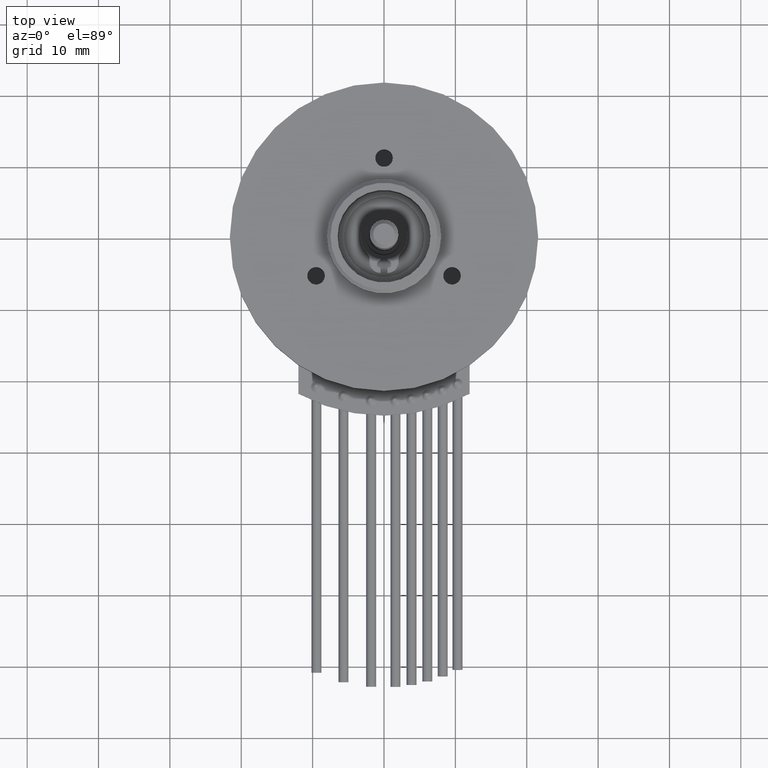
[diagram: clean part render]
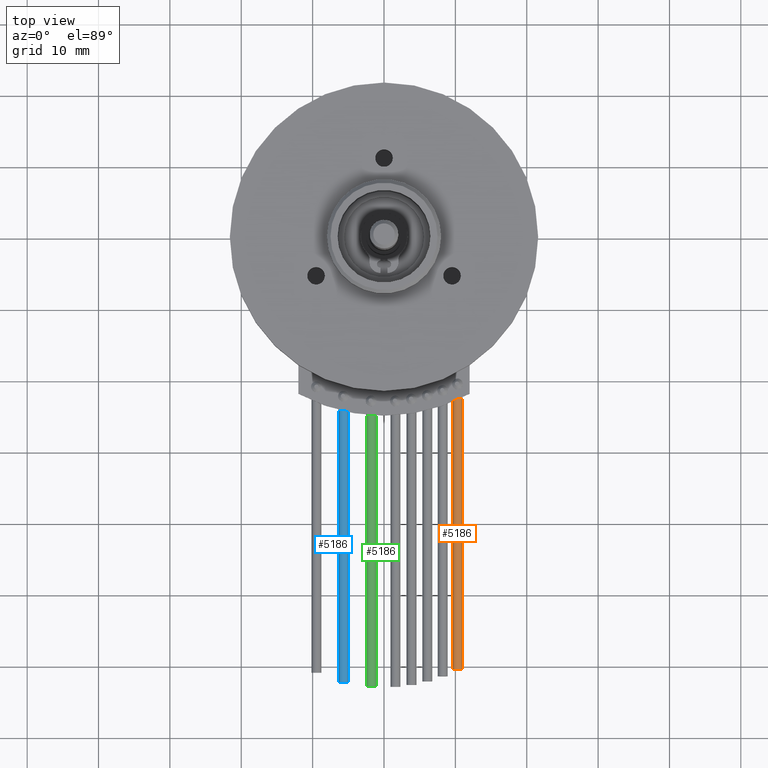
[diagram: same view with three faces highlighted in distinct colors, each labeled with its STEP entity id]
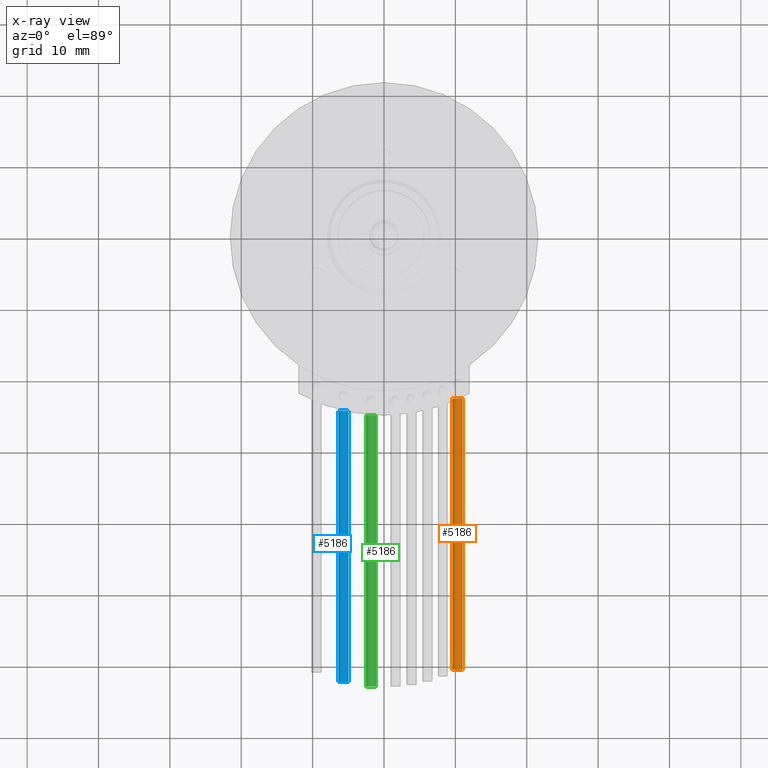
[diagram: x-ray of the same camera — body ghosted, the three highlighted faces saturated]
A machine part, top view with three faces highlighted in distinct colors.
The next image is the same camera in x-ray (body ghosted, the three faces saturated) — at least one of them is partly hidden behind the body in this view.
Their STEP definitions:

[orange] entity #5186 — the highlighted cylindrical surface (bore or boss wall) has radius 0.7 mm, axis along (0, 1, 0).
#5155=CARTESIAN_POINT('',(0.700000000000000,-2.000000000000002,8.572528E-017));
#5156=VERTEX_POINT('',#5155);
#5157=CARTESIAN_POINT('',(3.154314E-016,-2.000000000000002,0.0));
#5158=DIRECTION('',(0.0,-1.0,0.0));
#5159=DIRECTION('',(-1.0,0.0,0.0));
#5160=AXIS2_PLACEMENT_3D('',#5157,#5158,#5159);
#5161=CIRCLE('',#5160,0.700000000000000);
#5162=EDGE_CURVE('',#5156,#5156,#5161,.T.);
#5167=CARTESIAN_POINT('',(2.487169E-015,-40.0,0.0));
#5168=DIRECTION('',(-5.715100E-017,1.0,0.0));
#5169=DIRECTION('',(-1.0,0.0,0.0));
#5170=AXIS2_PLACEMENT_3D('',#5167,#5168,#5169);
#5171=CYLINDRICAL_SURFACE('',#5170,0.700000000000000);
#5172=ORIENTED_EDGE('',*,*,#5162,.T.);
#5173=EDGE_LOOP('',(#5172));
#5174=FACE_OUTER_BOUND('',#5173,.T.);
#5175=CARTESIAN_POINT('',(0.700000000000002,-40.0,8.572528E-017));
#5176=VERTEX_POINT('',#5175);
#5177=CARTESIAN_POINT('',(2.487169E-015,-40.0,0.0));
#5178=DIRECTION('',(0.0,1.0,0.0));
#5179=DIRECTION('',(-1.0,0.0,0.0));
#5180=AXIS2_PLACEMENT_3D('',#5177,#5178,#5179);
#5181=CIRCLE('',#5180,0.700000000000000);
#5182=EDGE_CURVE('',#5176,#5176,#5181,.T.);
#5183=ORIENTED_EDGE('',*,*,#5182,.T.);
#5184=EDGE_LOOP('',(#5183));
#5185=FACE_BOUND('',#5184,.T.);
#5186=ADVANCED_FACE('',(#5174,#5185),#5171,.T.);

[blue] entity #5186 — the highlighted cylindrical surface (bore or boss wall) has radius 0.7 mm, axis along (0, 1, 0).
#5155=CARTESIAN_POINT('',(0.700000000000000,-2.000000000000002,8.572528E-017));
#5156=VERTEX_POINT('',#5155);
#5157=CARTESIAN_POINT('',(3.154314E-016,-2.000000000000002,0.0));
#5158=DIRECTION('',(0.0,-1.0,0.0));
#5159=DIRECTION('',(-1.0,0.0,0.0));
#5160=AXIS2_PLACEMENT_3D('',#5157,#5158,#5159);
#5161=CIRCLE('',#5160,0.700000000000000);
#5162=EDGE_CURVE('',#5156,#5156,#5161,.T.);
#5167=CARTESIAN_POINT('',(2.487169E-015,-40.0,0.0));
#5168=DIRECTION('',(-5.715100E-017,1.0,0.0));
#5169=DIRECTION('',(-1.0,0.0,0.0));
#5170=AXIS2_PLACEMENT_3D('',#5167,#5168,#5169);
#5171=CYLINDRICAL_SURFACE('',#5170,0.700000000000000);
#5172=ORIENTED_EDGE('',*,*,#5162,.T.);
#5173=EDGE_LOOP('',(#5172));
#5174=FACE_OUTER_BOUND('',#5173,.T.);
#5175=CARTESIAN_POINT('',(0.700000000000002,-40.0,8.572528E-017));
#5176=VERTEX_POINT('',#5175);
#5177=CARTESIAN_POINT('',(2.487169E-015,-40.0,0.0));
#5178=DIRECTION('',(0.0,1.0,0.0));
#5179=DIRECTION('',(-1.0,0.0,0.0));
#5180=AXIS2_PLACEMENT_3D('',#5177,#5178,#5179);
#5181=CIRCLE('',#5180,0.700000000000000);
#5182=EDGE_CURVE('',#5176,#5176,#5181,.T.);
#5183=ORIENTED_EDGE('',*,*,#5182,.T.);
#5184=EDGE_LOOP('',(#5183));
#5185=FACE_BOUND('',#5184,.T.);
#5186=ADVANCED_FACE('',(#5174,#5185),#5171,.T.);

[green] entity #5186 — the highlighted cylindrical surface (bore or boss wall) has radius 0.7 mm, axis along (0, 1, 0).
#5155=CARTESIAN_POINT('',(0.700000000000000,-2.000000000000002,8.572528E-017));
#5156=VERTEX_POINT('',#5155);
#5157=CARTESIAN_POINT('',(3.154314E-016,-2.000000000000002,0.0));
#5158=DIRECTION('',(0.0,-1.0,0.0));
#5159=DIRECTION('',(-1.0,0.0,0.0));
#5160=AXIS2_PLACEMENT_3D('',#5157,#5158,#5159);
#5161=CIRCLE('',#5160,0.700000000000000);
#5162=EDGE_CURVE('',#5156,#5156,#5161,.T.);
#5167=CARTESIAN_POINT('',(2.487169E-015,-40.0,0.0));
#5168=DIRECTION('',(-5.715100E-017,1.0,0.0));
#5169=DIRECTION('',(-1.0,0.0,0.0));
#5170=AXIS2_PLACEMENT_3D('',#5167,#5168,#5169);
#5171=CYLINDRICAL_SURFACE('',#5170,0.700000000000000);
#5172=ORIENTED_EDGE('',*,*,#5162,.T.);
#5173=EDGE_LOOP('',(#5172));
#5174=FACE_OUTER_BOUND('',#5173,.T.);
#5175=CARTESIAN_POINT('',(0.700000000000002,-40.0,8.572528E-017));
#5176=VERTEX_POINT('',#5175);
#5177=CARTESIAN_POINT('',(2.487169E-015,-40.0,0.0));
#5178=DIRECTION('',(0.0,1.0,0.0));
#5179=DIRECTION('',(-1.0,0.0,0.0));
#5180=AXIS2_PLACEMENT_3D('',#5177,#5178,#5179);
#5181=CIRCLE('',#5180,0.700000000000000);
#5182=EDGE_CURVE('',#5176,#5176,#5181,.T.);
#5183=ORIENTED_EDGE('',*,*,#5182,.T.);
#5184=EDGE_LOOP('',(#5183));
#5185=FACE_BOUND('',#5184,.T.);
#5186=ADVANCED_FACE('',(#5174,#5185),#5171,.T.);